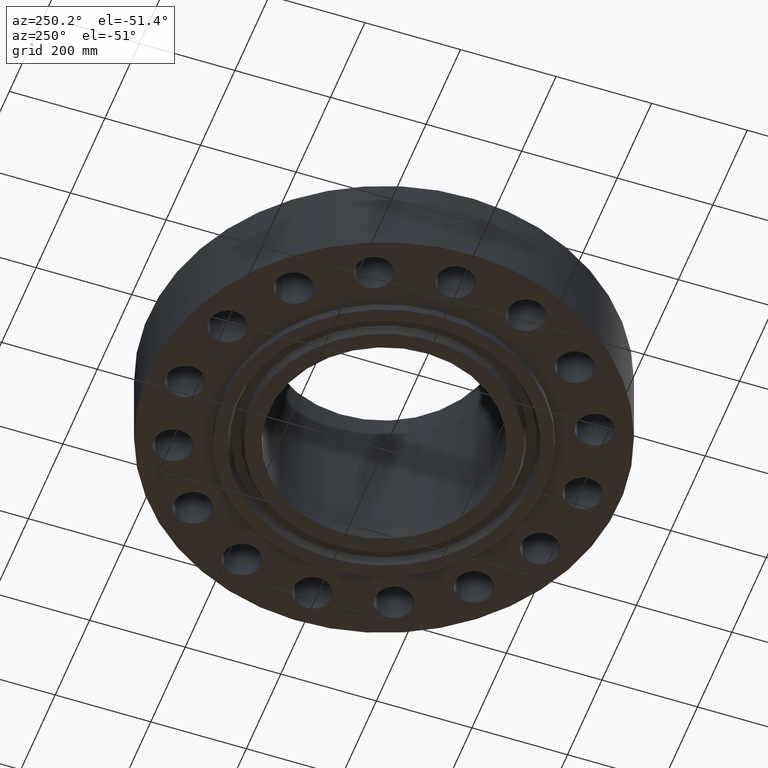
[diagram: clean part render]
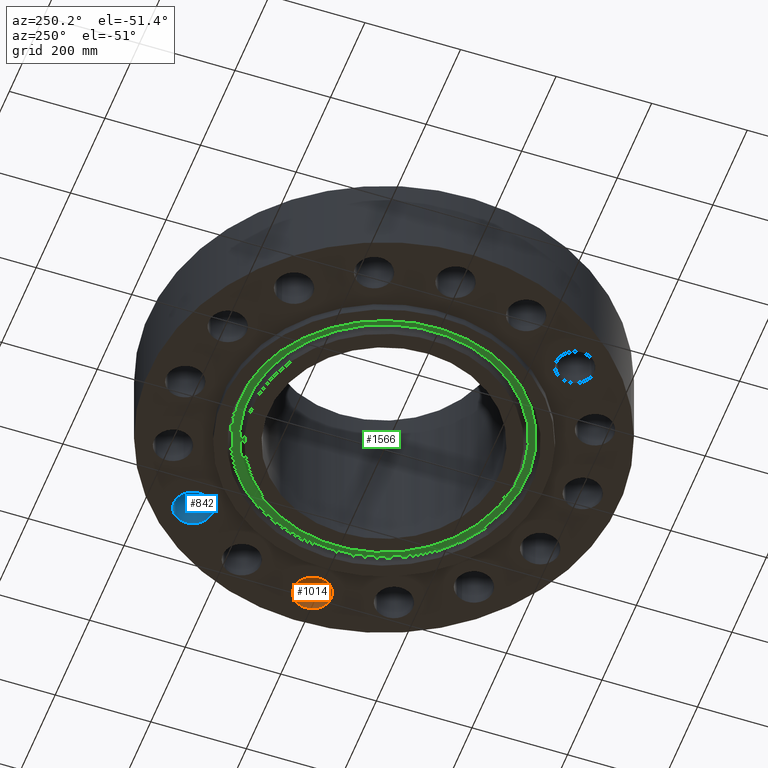
[diagram: same view with three faces highlighted in distinct colors, each labeled with its STEP entity id]
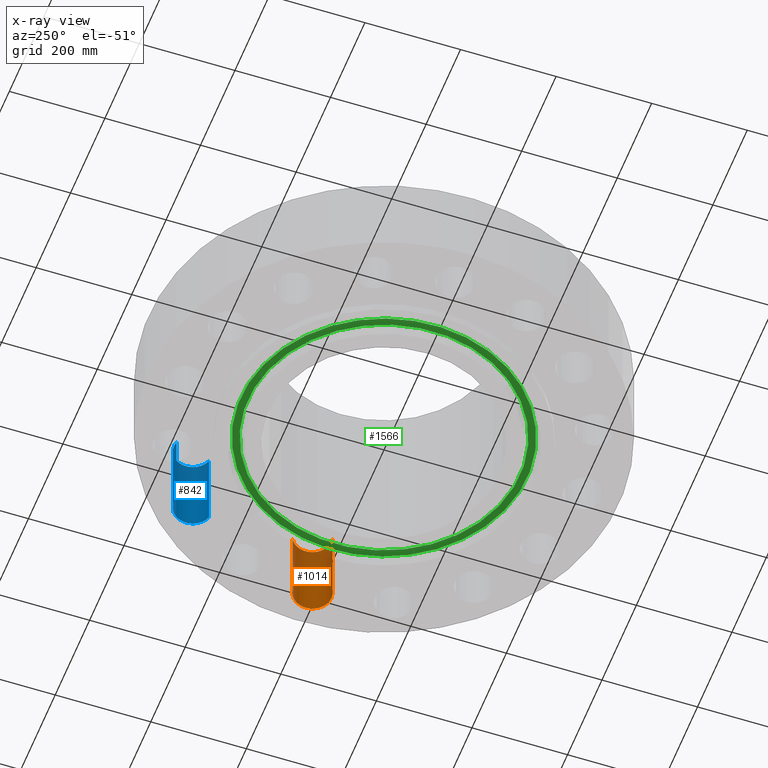
[diagram: x-ray of the same camera — body ghosted, the three highlighted faces saturated]
A machine part, auxiliary view with three faces highlighted in distinct colors.
The next image is the same camera in x-ray (body ghosted, the three faces saturated) — at least one of them is partly hidden behind the body in this view.
Their STEP definitions:

[orange] entity #1014 — the highlighted cylindrical surface (edge-blend (fillet) strip) has radius 39.624 mm, axis along (0, -0, -1).
#554=AXIS2_PLACEMENT_3D('Circle Axis2P3D',#552,#553,$) ;
#987=AXIS2_PLACEMENT_3D('Cylinder Axis2P3D',#984,#985,#986) ;
#1005=AXIS2_PLACEMENT_3D('Circle Axis2P3D',#1003,#1004,$) ;
#552=CARTESIAN_POINT('Axis2P3D Location',(16.3750000001,2.23792987641E-015,0.)) ;
#556=CARTESIAN_POINT('Vertex',(17.1229038403,1.36902879655,0.)) ;
#558=CARTESIAN_POINT('Vertex',(15.6270961598,-1.36902879655,0.)) ;
#984=CARTESIAN_POINT('Axis2P3D Location',(16.3750000001,1.00267956681E-015,6.99606299215)) ;
#989=CARTESIAN_POINT('Line Origine',(17.1229038403,1.36902879655,3.50000000001)) ;
#993=CARTESIAN_POINT('Vertex',(17.1229038403,1.36902879655,7.00000000003)) ;
#996=CARTESIAN_POINT('Line Origine',(15.6270961598,-1.36902879655,3.50000000001)) ;
#1000=CARTESIAN_POINT('Vertex',(15.6270961598,-1.36902879655,7.00000000003)) ;
#1003=CARTESIAN_POINT('Axis2P3D Location',(16.3750000001,1.00267956681E-015,7.00000000003)) ;
#553=DIRECTION('Axis2P3D Direction',(0.,0.,-0.0393700787402)) ;
#985=DIRECTION('Axis2P3D Direction',(0.,-0.,-0.0393700787402)) ;
#986=DIRECTION('Axis2P3D XDirection',(-0.0188750212049,-0.0345504945626,0.)) ;
#990=DIRECTION('Vector Direction',(0.,0.,-0.0393700787402)) ;
#997=DIRECTION('Vector Direction',(0.,0.,-0.0393700787402)) ;
#1004=DIRECTION('Axis2P3D Direction',(0.,-0.,-0.0393700787402)) ;
#991=VECTOR('Line Direction',#990,0.0393700787402) ;
#998=VECTOR('Line Direction',#997,0.0393700787402) ;
#1009=ORIENTED_EDGE('',*,*,#995,.F.) ;
#1010=ORIENTED_EDGE('',*,*,#560,.T.) ;
#1011=ORIENTED_EDGE('',*,*,#1002,.T.) ;
#1012=ORIENTED_EDGE('',*,*,#1007,.F.) ;
#1014=ADVANCED_FACE('PartBody',(#1013),#988,.F.) ;
#555=CIRCLE('generated circle',#554,1.56000000001) ;
#1006=CIRCLE('generated circle',#1005,1.56000000001) ;
#988=CYLINDRICAL_SURFACE('generated cylinder',#987,1.56000000001) ;
#560=EDGE_CURVE('',#557,#559,#555,.T.) ;
#995=EDGE_CURVE('',#557,#994,#992,.F.) ;
#1002=EDGE_CURVE('',#559,#1001,#999,.F.) ;
#1007=EDGE_CURVE('',#994,#1001,#1006,.T.) ;
#1008=EDGE_LOOP('',(#1009,#1010,#1011,#1012)) ;
#1013=FACE_OUTER_BOUND('',#1008,.T.) ;
#992=LINE('Line',#989,#991) ;
#999=LINE('Line',#996,#998) ;
#557=VERTEX_POINT('',#556) ;
#559=VERTEX_POINT('',#558) ;
#994=VERTEX_POINT('',#993) ;
#1001=VERTEX_POINT('',#1000) ;

[blue] entity #842 — the highlighted cylindrical surface (edge-blend (fillet) strip) has radius 39.624 mm, axis along (0, -0, -1).
#518=AXIS2_PLACEMENT_3D('Circle Axis2P3D',#516,#517,$) ;
#815=AXIS2_PLACEMENT_3D('Cylinder Axis2P3D',#812,#813,#814) ;
#833=AXIS2_PLACEMENT_3D('Circle Axis2P3D',#831,#832,$) ;
#516=CARTESIAN_POINT('Axis2P3D Location',(11.578873542,11.578873542,0.)) ;
#520=CARTESIAN_POINT('Vertex',(11.1396718734,13.0757709648,0.)) ;
#522=CARTESIAN_POINT('Vertex',(12.0180752106,10.0819761192,0.)) ;
#812=CARTESIAN_POINT('Axis2P3D Location',(11.578873542,11.578873542,6.99606299215)) ;
#817=CARTESIAN_POINT('Line Origine',(11.1396718734,13.0757709648,3.50000000001)) ;
#821=CARTESIAN_POINT('Vertex',(11.1396718734,13.0757709648,7.00000000003)) ;
#824=CARTESIAN_POINT('Line Origine',(12.0180752106,10.0819761192,3.50000000001)) ;
#828=CARTESIAN_POINT('Vertex',(12.0180752106,10.0819761192,7.00000000003)) ;
#831=CARTESIAN_POINT('Axis2P3D Location',(11.578873542,11.578873542,7.00000000003)) ;
#517=DIRECTION('Axis2P3D Direction',(0.,0.,-0.0393700787402)) ;
#813=DIRECTION('Axis2P3D Direction',(0.,-0.,-0.0393700787402)) ;
#814=DIRECTION('Axis2P3D XDirection',(0.0110842335096,-0.0377775444876,0.)) ;
#818=DIRECTION('Vector Direction',(0.,0.,-0.0393700787402)) ;
#825=DIRECTION('Vector Direction',(0.,0.,-0.0393700787402)) ;
#832=DIRECTION('Axis2P3D Direction',(0.,-0.,-0.0393700787402)) ;
#819=VECTOR('Line Direction',#818,0.0393700787402) ;
#826=VECTOR('Line Direction',#825,0.0393700787402) ;
#837=ORIENTED_EDGE('',*,*,#823,.F.) ;
#838=ORIENTED_EDGE('',*,*,#524,.T.) ;
#839=ORIENTED_EDGE('',*,*,#830,.T.) ;
#840=ORIENTED_EDGE('',*,*,#835,.F.) ;
#842=ADVANCED_FACE('PartBody',(#841),#816,.F.) ;
#519=CIRCLE('generated circle',#518,1.56000000001) ;
#834=CIRCLE('generated circle',#833,1.56000000001) ;
#816=CYLINDRICAL_SURFACE('generated cylinder',#815,1.56000000001) ;
#524=EDGE_CURVE('',#521,#523,#519,.T.) ;
#823=EDGE_CURVE('',#521,#822,#820,.F.) ;
#830=EDGE_CURVE('',#523,#829,#827,.F.) ;
#835=EDGE_CURVE('',#822,#829,#834,.T.) ;
#836=EDGE_LOOP('',(#837,#838,#839,#840)) ;
#841=FACE_OUTER_BOUND('',#836,.T.) ;
#820=LINE('Line',#817,#819) ;
#827=LINE('Line',#824,#826) ;
#521=VERTEX_POINT('',#520) ;
#523=VERTEX_POINT('',#522) ;
#822=VERTEX_POINT('',#821) ;
#829=VERTEX_POINT('',#828) ;

[green] entity #1566 — the highlighted planar face has unit normal (0, 0, -1).
#484=AXIS2_PLACEMENT_3D('Plane Axis2P3D',#481,#482,#483) ;
#1488=AXIS2_PLACEMENT_3D('Circle Axis2P3D',#1486,#1487,$) ;
#1534=AXIS2_PLACEMENT_3D('Circle Axis2P3D',#1532,#1533,$) ;
#1550=AXIS2_PLACEMENT_3D('Circle Axis2P3D',#1548,#1549,$) ;
#1559=AXIS2_PLACEMENT_3D('Circle Axis2P3D',#1557,#1558,$) ;
#481=CARTESIAN_POINT('Axis2P3D Location',(0.,13.2500000001,0.)) ;
#1483=CARTESIAN_POINT('Vertex',(-5.65829722659,10.3574435991,-8.39223703654E-016)) ;
#1486=CARTESIAN_POINT('Axis2P3D Location',(0.,0.,-8.39223703654E-016)) ;
#1490=CARTESIAN_POINT('Vertex',(5.65829722659,-10.3574435991,-8.39223703654E-016)) ;
#1532=CARTESIAN_POINT('Axis2P3D Location',(0.,0.,-8.39223703654E-016)) ;
#1548=CARTESIAN_POINT('Axis2P3D Location',(0.,0.,0.)) ;
#1552=CARTESIAN_POINT('Vertex',(5.36849016135,-9.82695532449,5.76966296262E-016)) ;
#1554=CARTESIAN_POINT('Vertex',(-5.36849016135,9.82695532449,5.76966296262E-016)) ;
#1557=CARTESIAN_POINT('Axis2P3D Location',(0.,0.,0.)) ;
#482=DIRECTION('Axis2P3D Direction',(0.,0.,-0.0393700787402)) ;
#483=DIRECTION('Axis2P3D XDirection',(0.0393700787402,0.,0.)) ;
#1487=DIRECTION('Axis2P3D Direction',(0.,0.,0.0393700787402)) ;
#1533=DIRECTION('Axis2P3D Direction',(0.,0.,0.0393700787402)) ;
#1549=DIRECTION('Axis2P3D Direction',(0.,0.,-0.0393700787402)) ;
#1558=DIRECTION('Axis2P3D Direction',(0.,0.,-0.0393700787402)) ;
#1545=ORIENTED_EDGE('',*,*,#1492,.F.) ;
#1546=ORIENTED_EDGE('',*,*,#1536,.F.) ;
#1563=ORIENTED_EDGE('',*,*,#1556,.T.) ;
#1564=ORIENTED_EDGE('',*,*,#1561,.T.) ;
#1565=FACE_BOUND('',#1562,.T.) ;
#1566=ADVANCED_FACE('PartBody',(#1547,#1565),#485,.T.) ;
#1489=CIRCLE('generated circle',#1488,11.8022440837) ;
#1535=CIRCLE('generated circle',#1534,11.8022440837) ;
#1551=CIRCLE('generated circle',#1550,11.1977559163) ;
#1560=CIRCLE('generated circle',#1559,11.1977559163) ;
#1492=EDGE_CURVE('',#1484,#1491,#1489,.T.) ;
#1536=EDGE_CURVE('',#1491,#1484,#1535,.T.) ;
#1556=EDGE_CURVE('',#1553,#1555,#1551,.F.) ;
#1561=EDGE_CURVE('',#1555,#1553,#1560,.F.) ;
#1544=EDGE_LOOP('',(#1545,#1546)) ;
#1562=EDGE_LOOP('',(#1563,#1564)) ;
#1547=FACE_OUTER_BOUND('',#1544,.T.) ;
#485=PLANE('',#484) ;
#1484=VERTEX_POINT('',#1483) ;
#1491=VERTEX_POINT('',#1490) ;
#1553=VERTEX_POINT('',#1552) ;
#1555=VERTEX_POINT('',#1554) ;